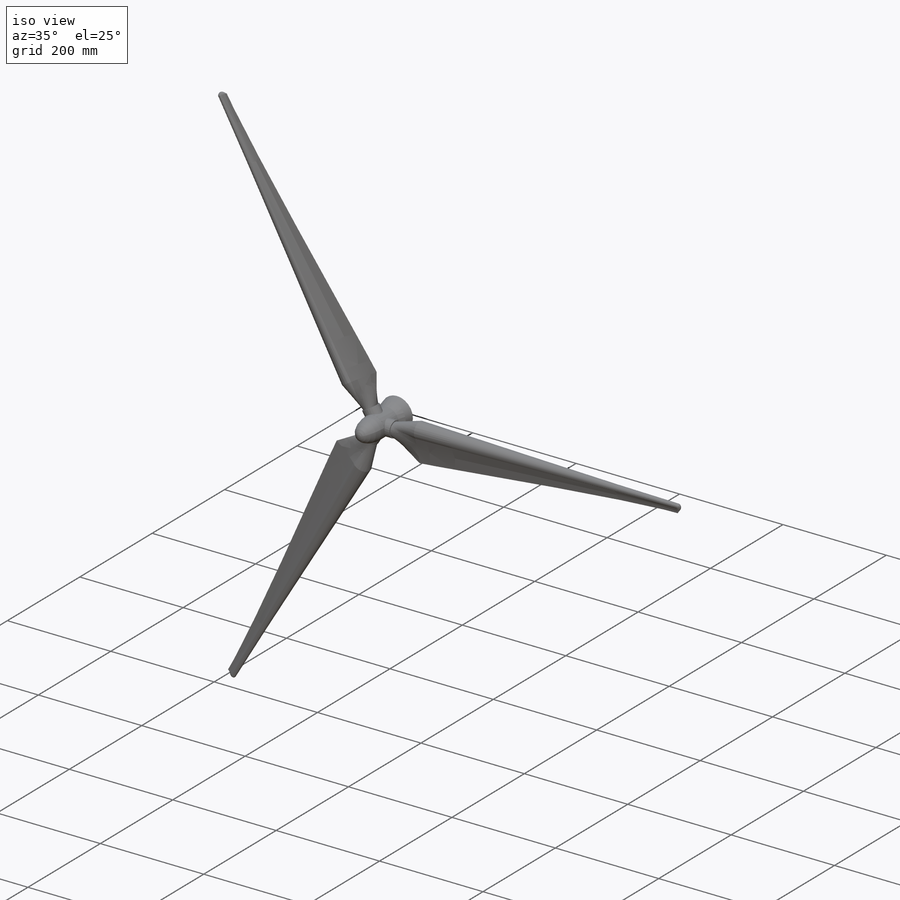
[diagram: iso view]
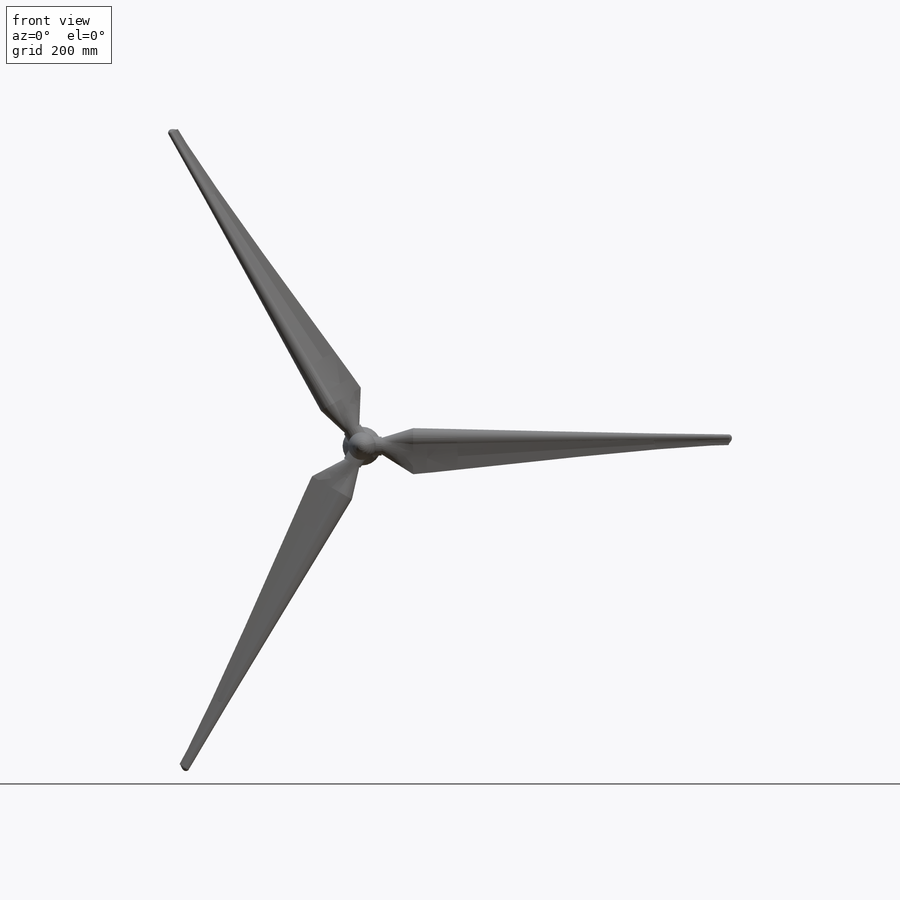
[diagram: front view]
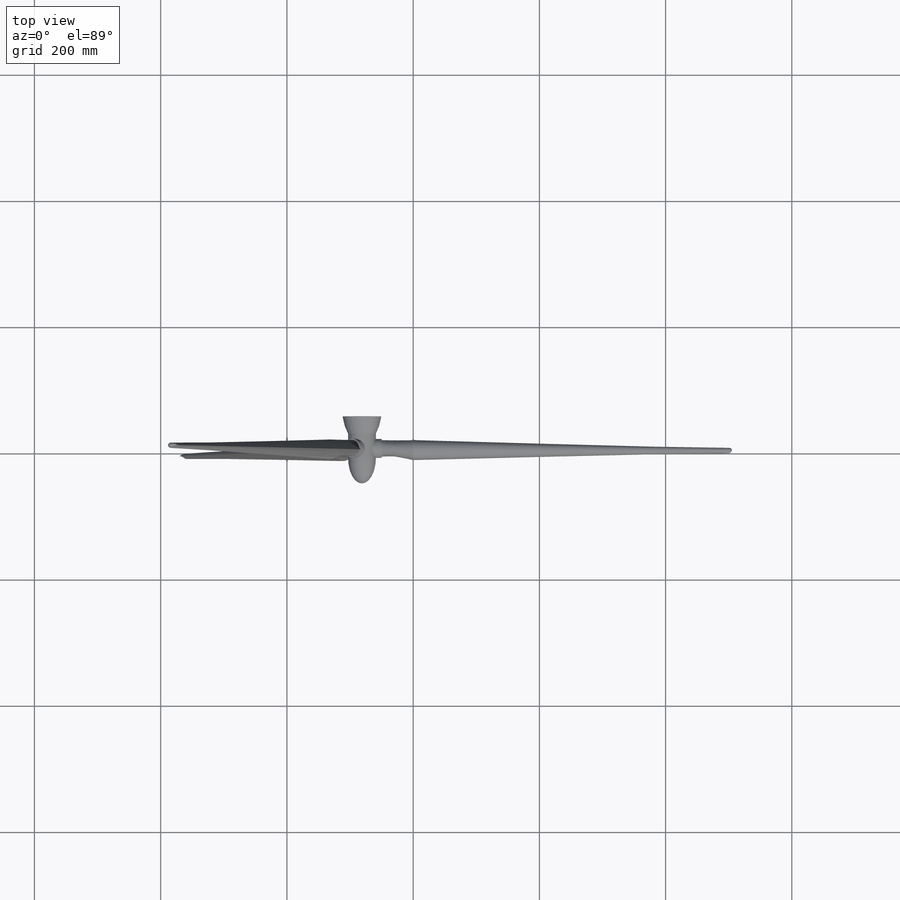
[diagram: top view]
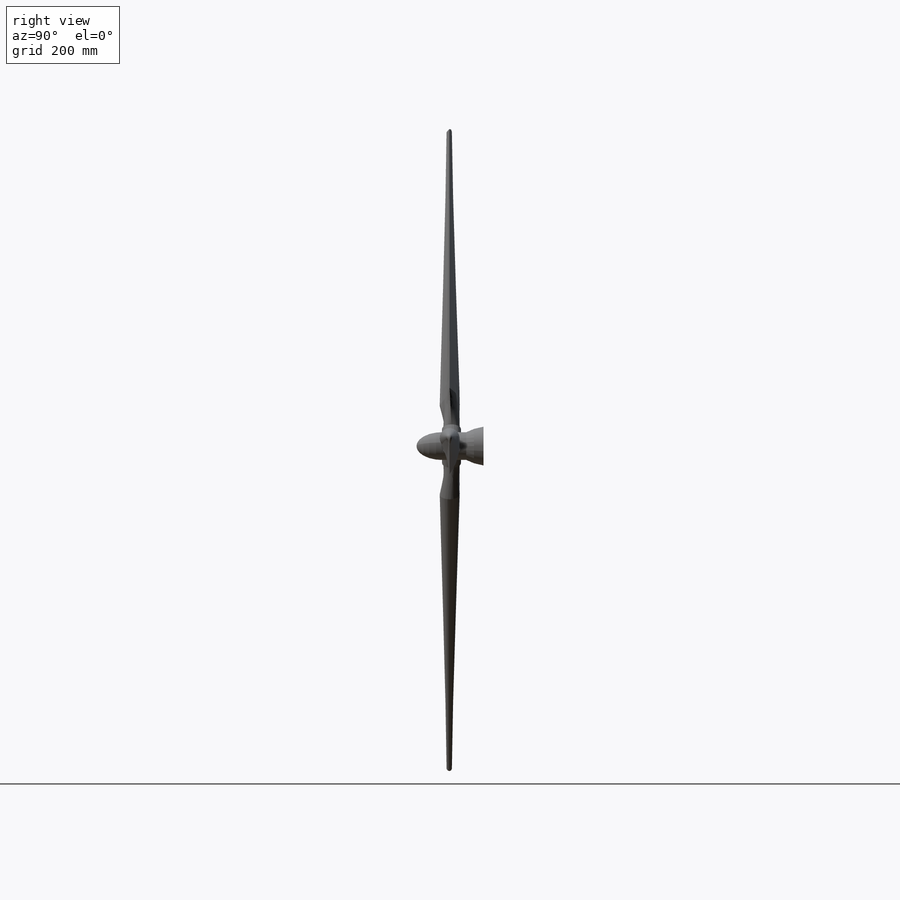
[diagram: right view]
SOLIDWORKS PART (.sldprt)
format: sldprt  version: not decoded by parser v0  size: 1,029,120 bytes
history: native  units: mm
features: sketch x8, plane x4, extrude x4, dome x2, material x1, pattern_circular x1 (+12 scaffold rows collapsed)
feature tree (32):
  scaffold x12  (default folders/planes/origin — collapsed)
  material  "Material <not specified>"
  sketch  "Sketch9"
  plane  "Plane2"  Offset=500mm
  sketch  "Sketch10"
  dome  "Dome4"
  plane  "Plane3"  Offset=50mm
  sketch  "Sketch12"
  sketch  "Sketch13"  dims[D1=~14.974314mm]
  extrude  "Boss-Extrude6"  Depth=15mm
  plane  "Plane4"  Offset=0mm
  sketch  "Sketch14"  dims[D1=~22.723996mm]
  extrude  "Boss-Extrude7"  Depth=15mm
  pattern_circular  "CirPattern5"  Count=3 Angle=360deg
  sketch  "Sketch17"
  sketch  "Sketch18"
  extrude  "Boss-Extrude8"  Depth=1mm
  dome  "Dome6"
  plane  "Plane7"  Offset=35mm
  sketch  "Sketch24"
  extrude  "Boss-Extrude10"  Depth=14mm
decode coverage: 7 of 15 modeling features carry decoded parameters
note: ~ marks probable driven/reference dimensions
note: suppression state not decoded; provenance and decode notes live in map.json
